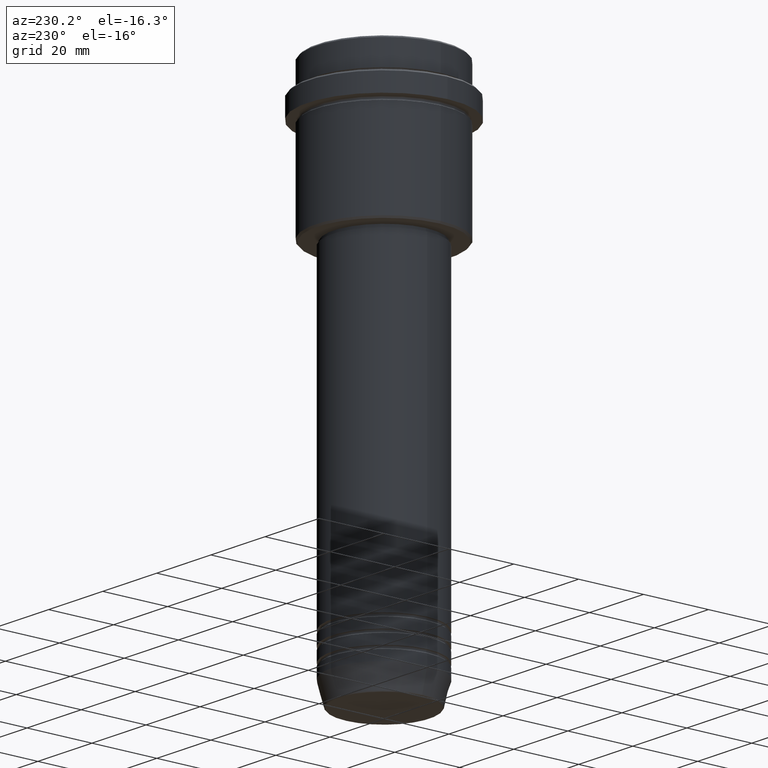
[diagram: clean part render]
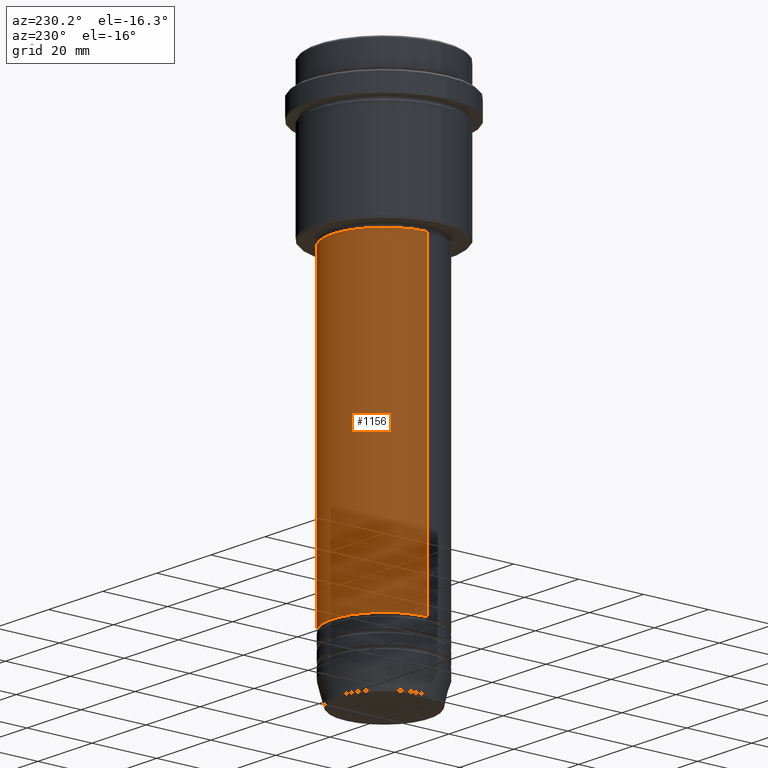
[diagram: same view with one face highlighted and labeled with its STEP entity id]
A machine part, auxiliary view. The second image highlights one B-rep face of the part: STEP entity #1156.
In plain terms, the highlighted cylindrical surface (partial cylindrical patch) has radius 16 mm, axis along (-0, -0, 1).
Its self-contained STEP definition (entity closure, byte-faithful):
#31 = EDGE_CURVE ( 'NONE', #1153, #1265, #1198, .T. ) ;
#116 = VECTOR ( 'NONE', #1211, 1000.000000000000000 ) ;
#122 = ORIENTED_EDGE ( 'NONE', *, *, #384, .T. ) ;
#167 = FACE_OUTER_BOUND ( 'NONE', #653, .T. ) ;
#202 = VERTEX_POINT ( 'NONE', #945 ) ;
#285 = AXIS2_PLACEMENT_3D ( 'NONE', #838, #934, #750 ) ;
#299 = CARTESIAN_POINT ( 'NONE',  ( 16.00000000000000355, 0.000000000000000000, -45.99999999999998579 ) ) ;
#364 = DIRECTION ( 'NONE',  ( -0.000000000000000000, -0.000000000000000000, 1.000000000000000000 ) ) ;
#384 = EDGE_CURVE ( 'NONE', #202, #1293, #1271, .T. ) ;
#434 = CARTESIAN_POINT ( 'NONE',  ( -16.00000000000000355, 1.959434878635765526E-15, -45.99999999999998579 ) ) ;
#442 = LINE ( 'NONE', #1324, #116 ) ;
#464 = CARTESIAN_POINT ( 'NONE',  ( -16.00000000000000000, 1.959434878635765131E-15, 0.000000000000000000 ) ) ;
#492 = CYLINDRICAL_SURFACE ( 'NONE', #285, 16.00000000000000000 ) ;
#506 = EDGE_CURVE ( 'NONE', #202, #1153, #442, .T. ) ;
#536 = CARTESIAN_POINT ( 'NONE',  ( 0.000000000000000000, 0.000000000000000000, -45.99999999999998579 ) ) ;
#568 = VECTOR ( 'NONE', #364, 1000.000000000000000 ) ;
#587 = AXIS2_PLACEMENT_3D ( 'NONE', #536, #1287, #1178 ) ;
#653 = EDGE_LOOP ( 'NONE', ( #122, #1151, #1179, #1098 ) ) ;
#680 = CARTESIAN_POINT ( 'NONE',  ( -16.00000000000000000, 1.959434878635765131E-15, -140.9999999999999147 ) ) ;
#691 = AXIS2_PLACEMENT_3D ( 'NONE', #980, #1089, #1106 ) ;
#750 = DIRECTION ( 'NONE',  ( 1.000000000000000000, 0.000000000000000000, 0.000000000000000000 ) ) ;
#801 = EDGE_CURVE ( 'NONE', #1293, #1265, #1120, .T. ) ;
#838 = CARTESIAN_POINT ( 'NONE',  ( 0.000000000000000000, 0.000000000000000000, 0.000000000000000000 ) ) ;
#934 = DIRECTION ( 'NONE',  ( -0.000000000000000000, -0.000000000000000000, 1.000000000000000000 ) ) ;
#945 = CARTESIAN_POINT ( 'NONE',  ( 16.00000000000000000, 0.000000000000000000, -140.9999999999999147 ) ) ;
#980 = CARTESIAN_POINT ( 'NONE',  ( 0.000000000000000000, 0.000000000000000000, -140.9999999999999147 ) ) ;
#1089 = DIRECTION ( 'NONE',  ( -0.000000000000000000, -0.000000000000000000, 1.000000000000000000 ) ) ;
#1098 = ORIENTED_EDGE ( 'NONE', *, *, #506, .F. ) ;
#1106 = DIRECTION ( 'NONE',  ( 1.000000000000000000, 0.000000000000000000, 0.000000000000000000 ) ) ;
#1120 = LINE ( 'NONE', #464, #568 ) ;
#1151 = ORIENTED_EDGE ( 'NONE', *, *, #801, .T. ) ;
#1153 = VERTEX_POINT ( 'NONE', #299 ) ;
#1156 = ADVANCED_FACE ( 'NONE', ( #167 ), #492, .T. ) ;
#1178 = DIRECTION ( 'NONE',  ( 1.000000000000000000, 0.000000000000000000, 0.000000000000000000 ) ) ;
#1179 = ORIENTED_EDGE ( 'NONE', *, *, #31, .F. ) ;
#1198 = CIRCLE ( 'NONE', #587, 16.00000000000000355 ) ;
#1211 = DIRECTION ( 'NONE',  ( -0.000000000000000000, -0.000000000000000000, 1.000000000000000000 ) ) ;
#1265 = VERTEX_POINT ( 'NONE', #434 ) ;
#1271 = CIRCLE ( 'NONE', #691, 16.00000000000000000 ) ;
#1287 = DIRECTION ( 'NONE',  ( -0.000000000000000000, -0.000000000000000000, 1.000000000000000000 ) ) ;
#1293 = VERTEX_POINT ( 'NONE', #680 ) ;
#1324 = CARTESIAN_POINT ( 'NONE',  ( 16.00000000000000000, 0.000000000000000000, 0.000000000000000000 ) ) ;